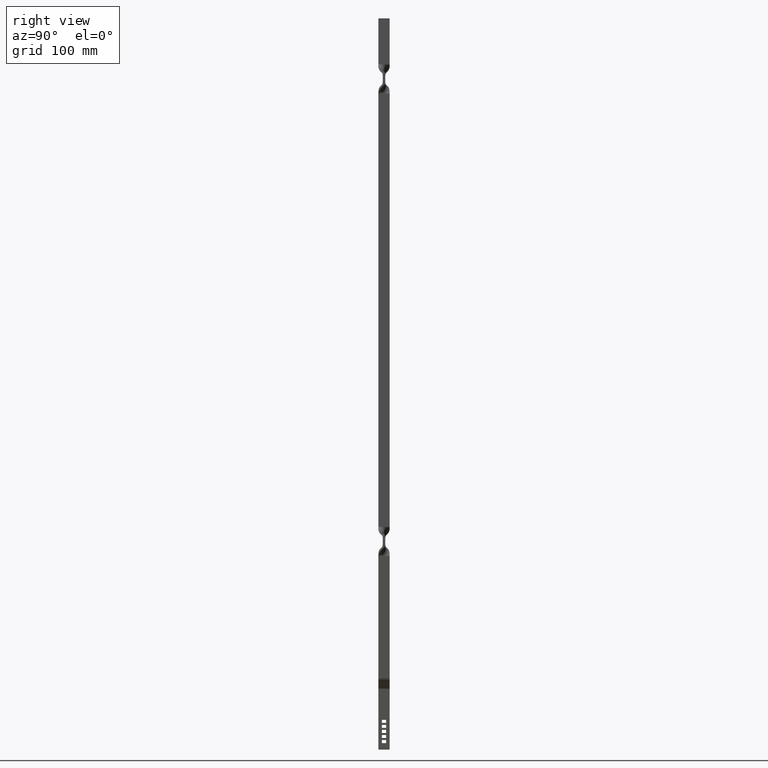
[diagram: clean part render]
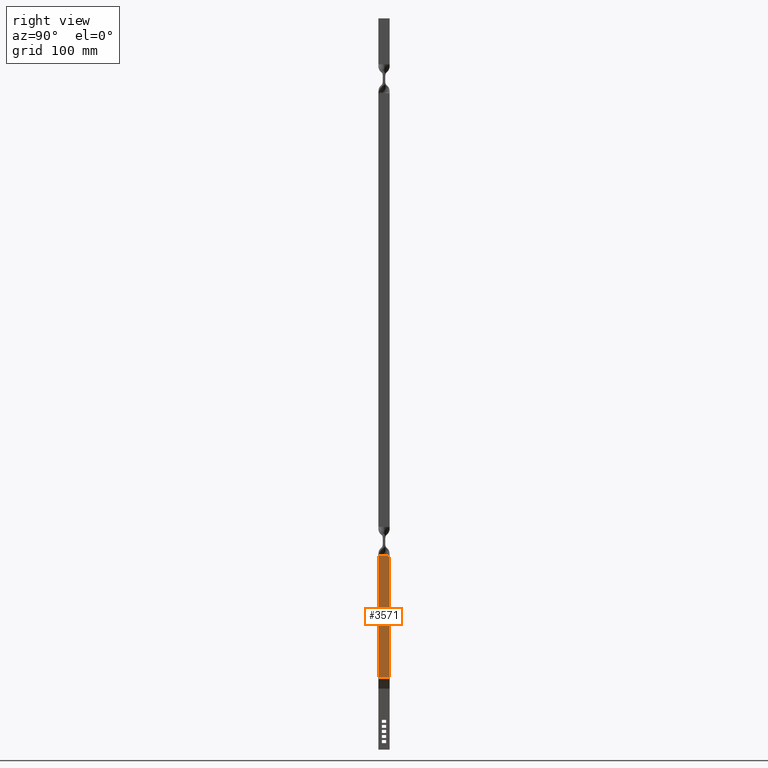
[diagram: same view with one face highlighted and labeled with its STEP entity id]
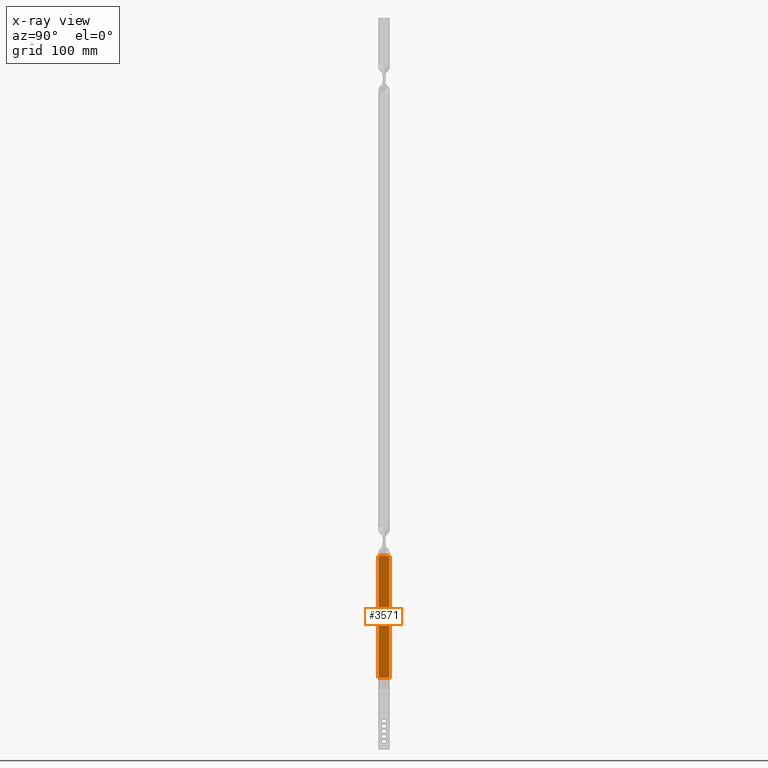
[diagram: x-ray of the same camera — body ghosted, the highlighted face saturated]
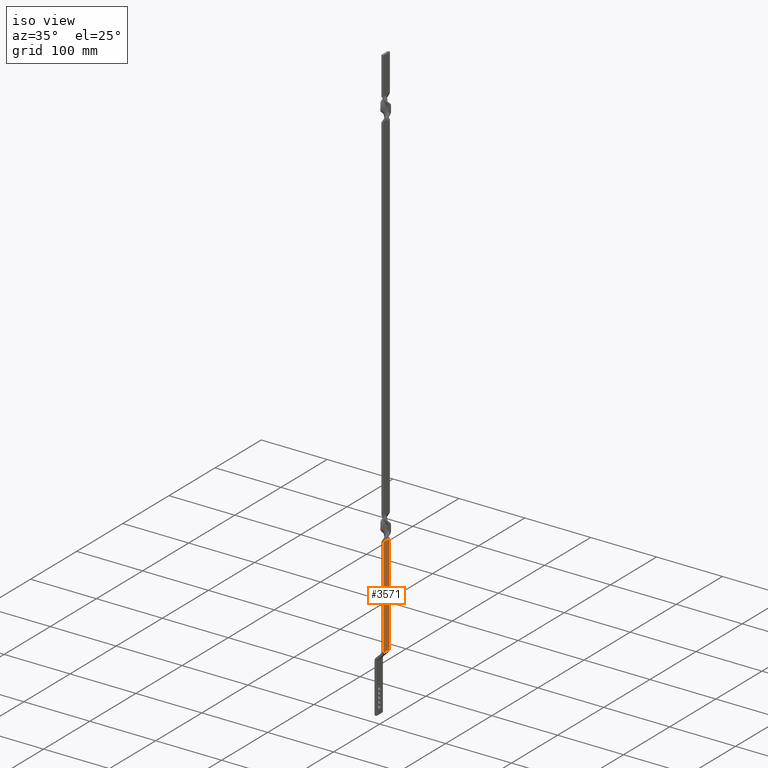
[diagram: same view with one face highlighted and labeled with its STEP entity id]
A machine part, right view. The second image highlights one B-rep face of the part: STEP entity #3571.
The next image is the same camera in x-ray: the body ghosted, the highlighted face saturated — about 0% of this face is hidden behind the body in this view.
A second angle (iso view) of the same face is appended — the face is thin or edge-on in the first view.
In plain terms, the highlighted face is a freeform B-spline surface patch.
Its self-contained STEP definition (entity closure, byte-faithful):
#1136=CARTESIAN_POINT('',(10.499999999975421,-0.271775746040537,231.499999864588010));
#1137=VERTEX_POINT('',#1136);
#1138=CARTESIAN_POINT('',(10.499999999975440,-7.0,230.313138716548000));
#1139=VERTEX_POINT('',#1138);
#1140=CARTESIAN_POINT('',(10.499999999975421,-0.271775746040537,231.499999864588010));
#1141=CARTESIAN_POINT('',(10.499999999975410,-0.828537849168861,231.380513608766790));
#1142=CARTESIAN_POINT('',(10.499999999975451,-1.385487364078483,231.259859835032300));
#1143=CARTESIAN_POINT('',(10.499999999975440,-2.501421362212994,231.030177948746200));
#1144=CARTESIAN_POINT('',(10.499999999975410,-3.060560236040873,230.921247943007500));
#1145=CARTESIAN_POINT('',(10.499999999975410,-4.182009287864827,230.720279087448690));
#1146=CARTESIAN_POINT('',(10.499999999975421,-4.743986133300880,230.628099401636490));
#1147=CARTESIAN_POINT('',(10.499999999975421,-5.870319582463386,230.459521368692690));
#1148=CARTESIAN_POINT('',(10.499999999975440,-6.434663200717830,230.383036908558610));
#1149=CARTESIAN_POINT('',(10.499999999975440,-7.0,230.313138716548000));
#1150=B_SPLINE_CURVE_WITH_KNOTS('',3,(#1140,#1141,#1142,#1143,#1144,#1145,#1146,#1147,#1148,#1149),.UNSPECIFIED.,.F.,.U.,(4,2,2,2,4),(0.0,0.250000000000000,0.500000000000000,0.750000000000000,1.0),.UNSPECIFIED.);
#1151=EDGE_CURVE('',#1137,#1139,#1150,.T.);
#1284=CARTESIAN_POINT('',(10.499999999975440,7.0,230.289823060119010));
#1285=VERTEX_POINT('',#1284);
#1286=CARTESIAN_POINT('',(10.499999999975440,7.0,230.289823060119010));
#1287=CARTESIAN_POINT('',(10.499999999975440,6.389812878324856,230.363019088062710));
#1288=CARTESIAN_POINT('',(10.499999999975310,5.780642736340851,230.443213533543400));
#1289=CARTESIAN_POINT('',(10.499999999975300,4.564574697635020,230.619239040682910));
#1290=CARTESIAN_POINT('',(10.499999999975460,3.957689163754529,230.715155178106700));
#1291=CARTESIAN_POINT('',(10.499999999975460,2.746067614053655,230.921779513228300));
#1292=CARTESIAN_POINT('',(10.499999999975429,2.141573673938265,231.032512532926400));
#1293=CARTESIAN_POINT('',(10.499999999975429,0.934187228392176,231.262608756842100));
#1294=CARTESIAN_POINT('',(10.499999999975490,0.331125424557758,231.381840328331410));
#1295=CARTESIAN_POINT('',(10.499999999975421,-0.271775746040537,231.499999864588010));
#1296=B_SPLINE_CURVE_WITH_KNOTS('',3,(#1286,#1287,#1288,#1289,#1290,#1291,#1292,#1293,#1294,#1295),.UNSPECIFIED.,.F.,.U.,(4,2,2,2,4),(0.0,0.250000000000000,0.500000000000000,0.750000000000000,1.0),.UNSPECIFIED.);
#1297=EDGE_CURVE('',#1285,#1137,#1296,.T.);
#1872=CARTESIAN_POINT('',(10.499999999976399,7.0,79.227923650092407));
#1873=VERTEX_POINT('',#1872);
#1889=CARTESIAN_POINT('',(10.499999999976399,-7.0,79.227923650092407));
#1890=VERTEX_POINT('',#1889);
#1891=CARTESIAN_POINT('',(10.499999999976399,-7.0,79.227923650092407));
#1892=CARTESIAN_POINT('',(10.499999999976399,7.0,79.227923650092407));
#1893=QUASI_UNIFORM_CURVE('',1,(#1891,#1892),.UNSPECIFIED.,.F.,.U.);
#1894=EDGE_CURVE('',#1890,#1873,#1893,.T.);
#3471=CARTESIAN_POINT('',(10.499999999976399,-7.0,79.227923650092407));
#3472=CARTESIAN_POINT('',(10.499999999975440,-7.0,230.313138716548000));
#3473=QUASI_UNIFORM_CURVE('',1,(#3471,#3472),.UNSPECIFIED.,.F.,.U.);
#3474=EDGE_CURVE('',#1890,#1139,#3473,.T.);
#3487=CARTESIAN_POINT('',(10.499999999976399,7.0,79.227923650092407));
#3488=CARTESIAN_POINT('',(10.499999999975440,7.0,230.289823060119010));
#3489=QUASI_UNIFORM_CURVE('',1,(#3487,#3488),.UNSPECIFIED.,.F.,.U.);
#3490=EDGE_CURVE('',#1873,#1285,#3489,.T.);
#3559=CARTESIAN_POINT('',(10.499999999976399,-7.699299972865284,239.105989776369200));
#3560=CARTESIAN_POINT('',(10.499999999976399,-7.699299972865284,71.621929654055805));
#3561=CARTESIAN_POINT('',(10.499999999976399,7.699300348374545,239.105989776369200));
#3562=CARTESIAN_POINT('',(10.499999999976399,7.699300348374545,71.621929654055805));
#3563=B_SPLINE_SURFACE_WITH_KNOTS('',1,1,((#3559,#3561),(#3560,#3562)),.UNSPECIFIED.,.F.,.F.,.U.,(2,2),(2,2),(0.0,167.484060122313390),(0.0,15.398600321239829),.UNSPECIFIED.);
#3564=ORIENTED_EDGE('',*,*,#3490,.T.);
#3565=ORIENTED_EDGE('',*,*,#1297,.T.);
#3566=ORIENTED_EDGE('',*,*,#1151,.T.);
#3567=ORIENTED_EDGE('',*,*,#3474,.F.);
#3568=ORIENTED_EDGE('',*,*,#1894,.T.);
#3569=EDGE_LOOP('',(#3564,#3565,#3566,#3567,#3568));
#3570=FACE_OUTER_BOUND('',#3569,.T.);
#3571=ADVANCED_FACE('',(#3570),#3563,.T.);